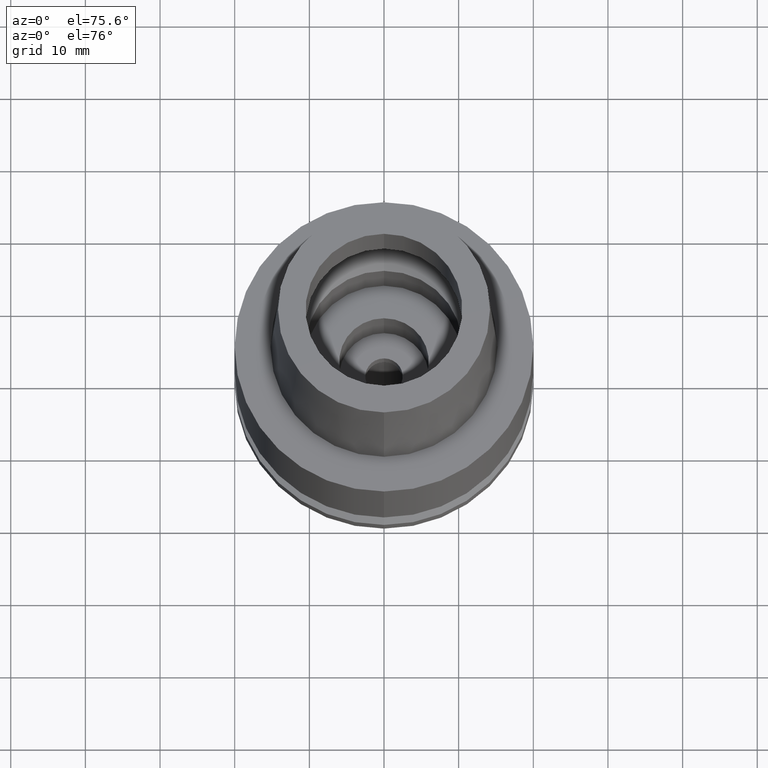
[diagram: clean part render]
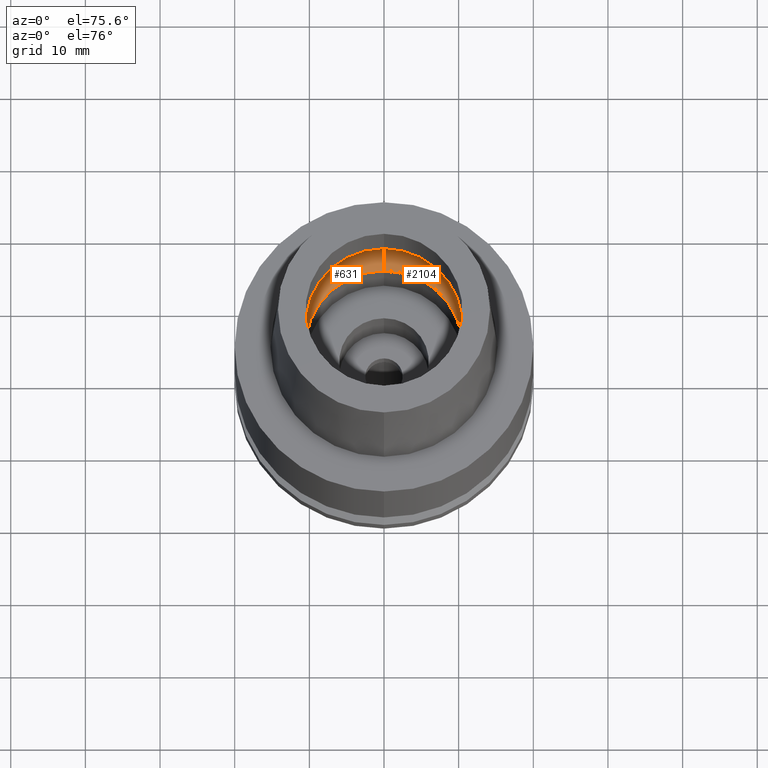
[diagram: same view with one multi-face feature highlighted, each face labeled with its STEP entity id]
A machine part, auxiliary view. The highlighted faces form ONE feature: a constant-radius fillet chain: 2 tangent blend faces with common blend radius 5 mm. The faces share edges in the B-rep.
Their STEP definitions:
[1] entity #631 (Torus):
#5 = DIRECTION ( 'NONE',  ( 1.000000000000000000, 0.0000000000000000000, 0.0000000000000000000 ) ) ;
#32 = ORIENTED_EDGE ( 'NONE', *, *, #1740, .F. ) ;
#50 = ORIENTED_EDGE ( 'NONE', *, *, #2623, .F. ) ;
#125 = CARTESIAN_POINT ( 'NONE',  ( 0.0000000000000000000, 0.0000000000000000000, 4.225999999999999979 ) ) ;
#289 = DIRECTION ( 'NONE',  ( 0.0000000000000000000, 0.0000000000000000000, 1.000000000000000000 ) ) ;
#323 = CARTESIAN_POINT ( 'NONE',  ( 0.0000000000000000000, -7.750000000000000000, 4.225999999999999979 ) ) ;
#383 = CARTESIAN_POINT ( 'NONE',  ( 0.0000000000000000000, -10.50000000000000000, 0.05017672787749000163 ) ) ;
#437 = EDGE_LOOP ( 'NONE', ( #1487, #32, #50, #802 ) ) ;
#441 = DIRECTION ( 'NONE',  ( 0.0000000000000000000, 0.5500000000000007105, -0.8351646544245028281 ) ) ;
#462 = AXIS2_PLACEMENT_3D ( 'NONE', #1197, #2187, #960 ) ;
#531 = AXIS2_PLACEMENT_3D ( 'NONE', #1940, #289, #1992 ) ;
#542 = DIRECTION ( 'NONE',  ( 0.0000000000000000000, 0.0000000000000000000, -1.000000000000000000 ) ) ;
#612 = CIRCLE ( 'NONE', #1619, 4.999999999999994671 ) ;
#631 = ADVANCED_FACE ( 'NONE', ( #2167 ), #926, .F. ) ;
#675 = EDGE_CURVE ( 'NONE', #723, #2103, #2636, .T. ) ;
#723 = VERTEX_POINT ( 'NONE', #788 ) ;
#788 = CARTESIAN_POINT ( 'NONE',  ( 0.0000000000000000000, -12.75000000000000000, 4.225999999999999979 ) ) ;
#802 = ORIENTED_EDGE ( 'NONE', *, *, #2230, .T. ) ;
#817 = CIRCLE ( 'NONE', #462, 10.50000000000000000 ) ;
#926 = TOROIDAL_SURFACE ( 'NONE', #531, 7.750000000000000000, 5.000000000000000000 ) ;
#960 = DIRECTION ( 'NONE',  ( 0.0000000000000000000, 1.000000000000000000, 0.0000000000000000000 ) ) ;
#1162 = CARTESIAN_POINT ( 'NONE',  ( 0.0000000000000000000, 10.50000000000000000, 0.05017672787752999741 ) ) ;
#1188 = AXIS2_PLACEMENT_3D ( 'NONE', #1862, #5, #441 ) ;
#1189 = AXIS2_PLACEMENT_3D ( 'NONE', #125, #542, #1338 ) ;
#1197 = CARTESIAN_POINT ( 'NONE',  ( 0.0000000000000000000, 0.0000000000000000000, 0.05017672787749000163 ) ) ;
#1338 = DIRECTION ( 'NONE',  ( 0.0000000000000000000, -1.000000000000000000, 0.0000000000000000000 ) ) ;
#1404 = CIRCLE ( 'NONE', #1188, 4.999999999999994671 ) ;
#1474 = VERTEX_POINT ( 'NONE', #383 ) ;
#1487 = ORIENTED_EDGE ( 'NONE', *, *, #675, .F. ) ;
#1619 = AXIS2_PLACEMENT_3D ( 'NONE', #323, #1771, #1798 ) ;
#1740 = EDGE_CURVE ( 'NONE', #1474, #723, #612, .T. ) ;
#1771 = DIRECTION ( 'NONE',  ( -1.000000000000000000, 0.0000000000000000000, 0.0000000000000000000 ) ) ;
#1798 = DIRECTION ( 'NONE',  ( 0.0000000000000000000, -0.5500000000000007105, -0.8351646544245028281 ) ) ;
#1862 = CARTESIAN_POINT ( 'NONE',  ( 0.0000000000000000000, 7.750000000000000000, 4.225999999999999979 ) ) ;
#1940 = CARTESIAN_POINT ( 'NONE',  ( 0.0000000000000000000, 0.0000000000000000000, 4.225999999999999979 ) ) ;
#1988 = CARTESIAN_POINT ( 'NONE',  ( 0.0000000000000000000, 12.75000000000000000, 4.225999999999999979 ) ) ;
#1992 = DIRECTION ( 'NONE',  ( 0.0000000000000000000, 1.000000000000000000, 0.0000000000000000000 ) ) ;
#1998 = VERTEX_POINT ( 'NONE', #1162 ) ;
#2103 = VERTEX_POINT ( 'NONE', #1988 ) ;
#2167 = FACE_OUTER_BOUND ( 'NONE', #437, .T. ) ;
#2187 = DIRECTION ( 'NONE',  ( 0.0000000000000000000, 0.0000000000000000000, 1.000000000000000000 ) ) ;
#2230 = EDGE_CURVE ( 'NONE', #1998, #2103, #1404, .T. ) ;
#2623 = EDGE_CURVE ( 'NONE', #1998, #1474, #817, .T. ) ;
#2636 = CIRCLE ( 'NONE', #1189, 12.75000000000000000 ) ;
[2] entity #2104 (Torus):
#5 = DIRECTION ( 'NONE',  ( 1.000000000000000000, 0.0000000000000000000, 0.0000000000000000000 ) ) ;
#103 = TOROIDAL_SURFACE ( 'NONE', #1056, 7.750000000000000000, 5.000000000000000000 ) ;
#236 = EDGE_CURVE ( 'NONE', #2103, #723, #2348, .T. ) ;
#323 = CARTESIAN_POINT ( 'NONE',  ( 0.0000000000000000000, -7.750000000000000000, 4.225999999999999979 ) ) ;
#383 = CARTESIAN_POINT ( 'NONE',  ( 0.0000000000000000000, -10.50000000000000000, 0.05017672787749000163 ) ) ;
#426 = ORIENTED_EDGE ( 'NONE', *, *, #1740, .T. ) ;
#441 = DIRECTION ( 'NONE',  ( 0.0000000000000000000, 0.5500000000000007105, -0.8351646544245028281 ) ) ;
#612 = CIRCLE ( 'NONE', #1619, 4.999999999999994671 ) ;
#706 = AXIS2_PLACEMENT_3D ( 'NONE', #2651, #769, #2603 ) ;
#723 = VERTEX_POINT ( 'NONE', #788 ) ;
#769 = DIRECTION ( 'NONE',  ( 0.0000000000000000000, 0.0000000000000000000, 1.000000000000000000 ) ) ;
#788 = CARTESIAN_POINT ( 'NONE',  ( 0.0000000000000000000, -12.75000000000000000, 4.225999999999999979 ) ) ;
#933 = ORIENTED_EDGE ( 'NONE', *, *, #2500, .F. ) ;
#1038 = AXIS2_PLACEMENT_3D ( 'NONE', #2679, #2615, #1804 ) ;
#1056 = AXIS2_PLACEMENT_3D ( 'NONE', #1574, #2405, #1440 ) ;
#1162 = CARTESIAN_POINT ( 'NONE',  ( 0.0000000000000000000, 10.50000000000000000, 0.05017672787752999741 ) ) ;
#1188 = AXIS2_PLACEMENT_3D ( 'NONE', #1862, #5, #441 ) ;
#1372 = ORIENTED_EDGE ( 'NONE', *, *, #2230, .F. ) ;
#1389 = EDGE_LOOP ( 'NONE', ( #933, #426, #2088, #1372 ) ) ;
#1404 = CIRCLE ( 'NONE', #1188, 4.999999999999994671 ) ;
#1440 = DIRECTION ( 'NONE',  ( 0.0000000000000000000, 1.000000000000000000, 0.0000000000000000000 ) ) ;
#1474 = VERTEX_POINT ( 'NONE', #383 ) ;
#1490 = CIRCLE ( 'NONE', #706, 10.50000000000000000 ) ;
#1574 = CARTESIAN_POINT ( 'NONE',  ( 0.0000000000000000000, 0.0000000000000000000, 4.225999999999999979 ) ) ;
#1619 = AXIS2_PLACEMENT_3D ( 'NONE', #323, #1771, #1798 ) ;
#1740 = EDGE_CURVE ( 'NONE', #1474, #723, #612, .T. ) ;
#1771 = DIRECTION ( 'NONE',  ( -1.000000000000000000, 0.0000000000000000000, 0.0000000000000000000 ) ) ;
#1798 = DIRECTION ( 'NONE',  ( 0.0000000000000000000, -0.5500000000000007105, -0.8351646544245028281 ) ) ;
#1804 = DIRECTION ( 'NONE',  ( 0.0000000000000000000, 1.000000000000000000, 0.0000000000000000000 ) ) ;
#1862 = CARTESIAN_POINT ( 'NONE',  ( 0.0000000000000000000, 7.750000000000000000, 4.225999999999999979 ) ) ;
#1973 = FACE_OUTER_BOUND ( 'NONE', #1389, .T. ) ;
#1988 = CARTESIAN_POINT ( 'NONE',  ( 0.0000000000000000000, 12.75000000000000000, 4.225999999999999979 ) ) ;
#1998 = VERTEX_POINT ( 'NONE', #1162 ) ;
#2088 = ORIENTED_EDGE ( 'NONE', *, *, #236, .F. ) ;
#2103 = VERTEX_POINT ( 'NONE', #1988 ) ;
#2104 = ADVANCED_FACE ( 'NONE', ( #1973 ), #103, .F. ) ;
#2230 = EDGE_CURVE ( 'NONE', #1998, #2103, #1404, .T. ) ;
#2348 = CIRCLE ( 'NONE', #1038, 12.75000000000000000 ) ;
#2405 = DIRECTION ( 'NONE',  ( 0.0000000000000000000, 0.0000000000000000000, 1.000000000000000000 ) ) ;
#2500 = EDGE_CURVE ( 'NONE', #1474, #1998, #1490, .T. ) ;
#2603 = DIRECTION ( 'NONE',  ( 0.0000000000000000000, -1.000000000000000000, 0.0000000000000000000 ) ) ;
#2615 = DIRECTION ( 'NONE',  ( 0.0000000000000000000, 0.0000000000000000000, -1.000000000000000000 ) ) ;
#2651 = CARTESIAN_POINT ( 'NONE',  ( 0.0000000000000000000, 0.0000000000000000000, 0.05017672787749000163 ) ) ;
#2679 = CARTESIAN_POINT ( 'NONE',  ( 0.0000000000000000000, 0.0000000000000000000, 4.225999999999999979 ) ) ;